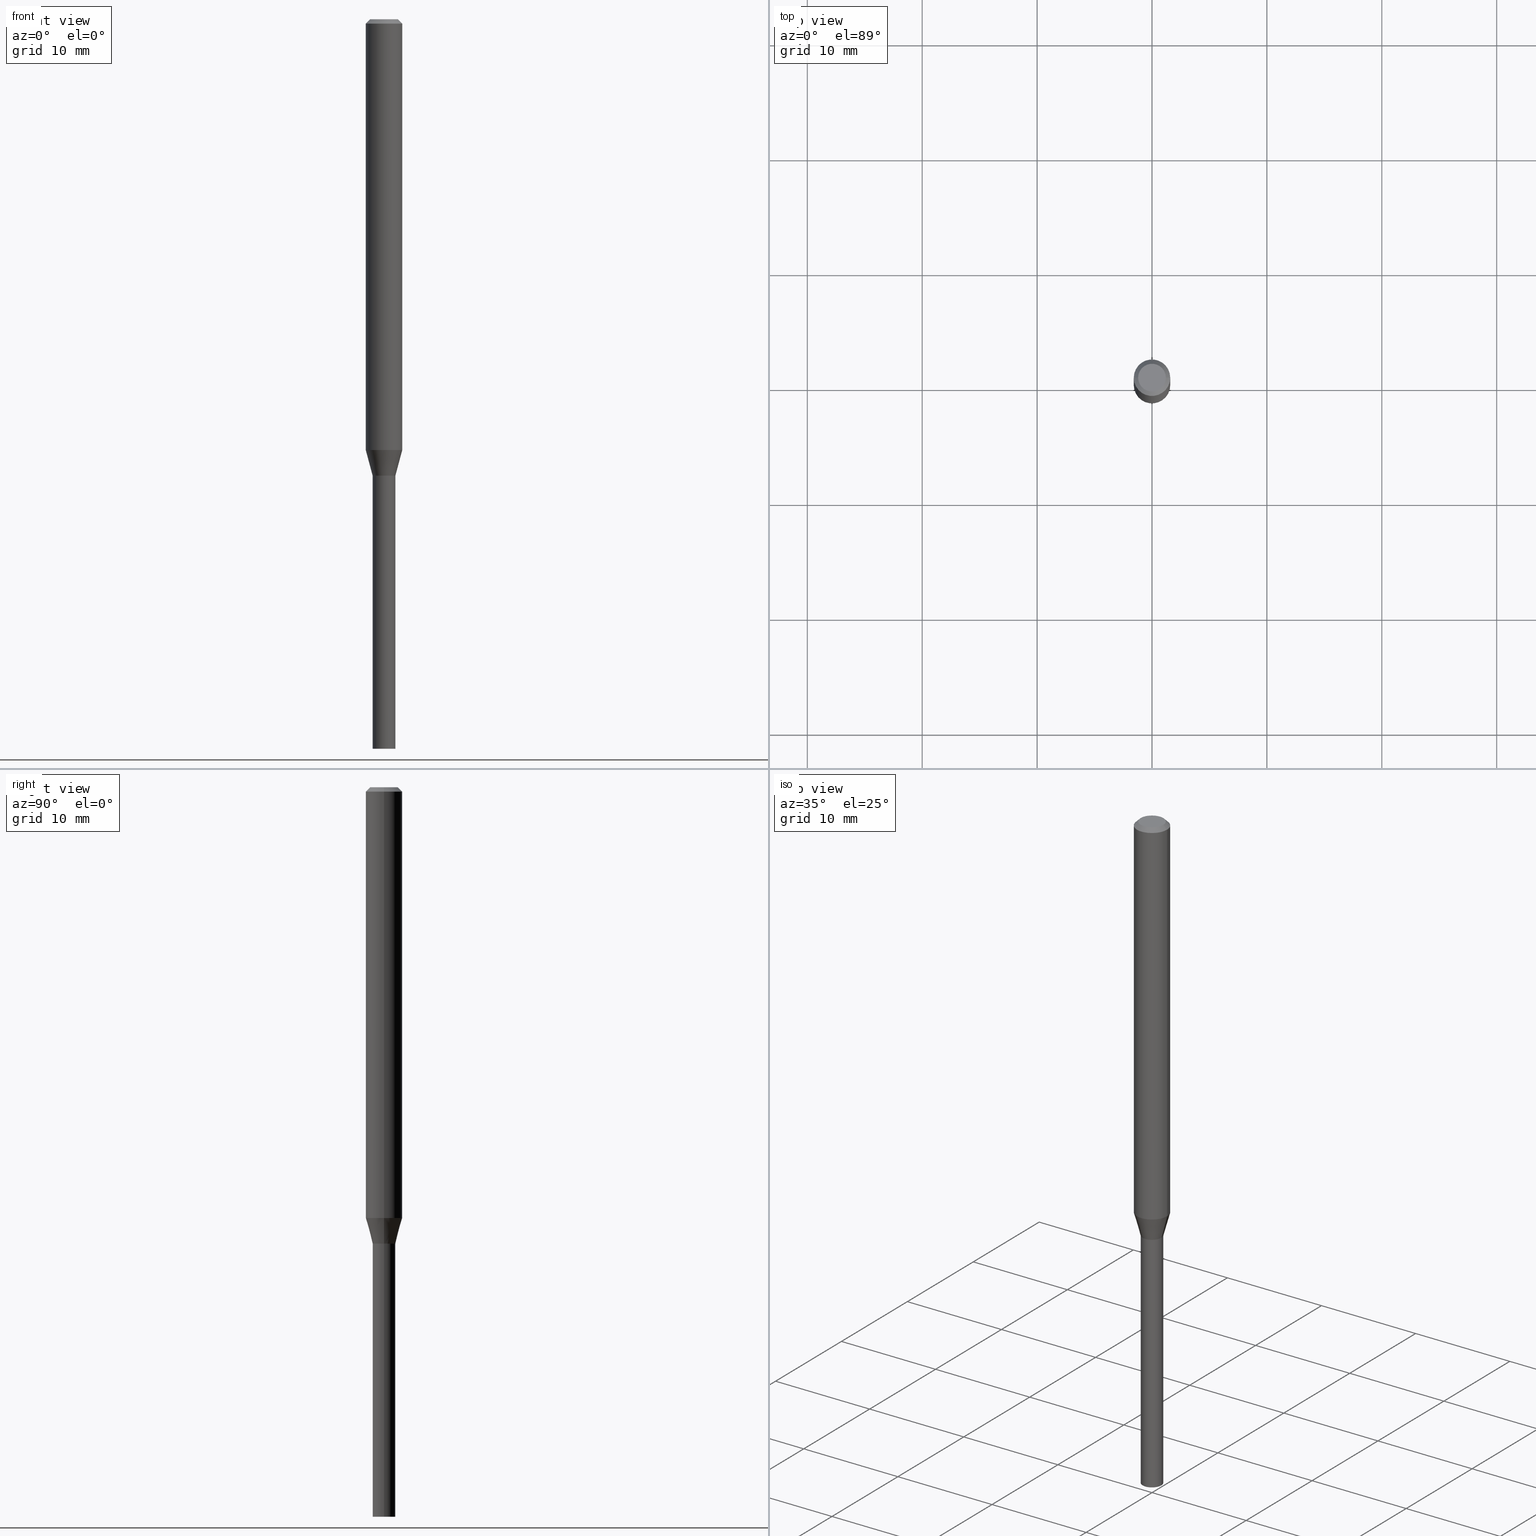
[diagram: canonical four-view strip — front | top / right | iso, engineering-drawing reading convention]
A machine part, canonical four-view strip (front | top / right | iso — engineering-drawing reading convention). The complete STEP part file that produces these views, byte-faithful:
ISO-10303-21;
HEADER;
FILE_DESCRIPTION (( 'STEP AP203' ),
    '1' );
FILE_NAME ('01300.STEP',
    '2024-03-20T01:13:30',
    ( '' ),
    ( '' ),
    'SwSTEP 2.0',
    'SolidWorks 2023',
    '' );
FILE_SCHEMA (( 'CONFIG_CONTROL_DESIGN' ));
ENDSEC;

DATA;
#1 = CARTESIAN_POINT ( 'NONE',  ( 0.000000000000000000, 0.000000000000000000, 0.000000000000000000 ) ) ;
#2 = DIRECTION ( 'NONE',  ( -2.445468806185136597E-29, 3.491481338843145583E-15, 1.000000000000000000 ) ) ;
#3 = EDGE_LOOP ( 'NONE', ( #464, #337, #123, #191 ) ) ;
#4 = CIRCLE ( 'NONE', #104, 0.03900000000000019423 ) ;
#5 = AXIS2_PLACEMENT_3D ( 'NONE', #444, #166, #49 ) ;
#6 = AXIS2_PLACEMENT_3D ( 'NONE', #459, #289, #102 ) ;
#7 = APPROVAL_STATUS ( 'not_yet_approved' ) ;
#8 = VERTEX_POINT ( 'NONE', #62 ) ;
#9 = ORIENTED_EDGE ( 'NONE', *, *, #461, .T. ) ;
#10 = PLANE ( 'NONE',  #415 ) ;
#11 = ORIENTED_EDGE ( 'NONE', *, *, #318, .F. ) ;
#12 = ADVANCED_FACE ( 'NONE', ( #210 ), #20, .T. ) ;
#13 = PERSON_AND_ORGANIZATION ( #177, #33 ) ;
#14 = CARTESIAN_POINT ( 'NONE',  ( 0.06250000000000000000, -4.364351673553916694E-16, 3.047610484872459871E-30 ) ) ;
#15 = VECTOR ( 'NONE', #206, 39.37007874015748143 ) ;
#16 = LINE ( 'NONE', #14, #52 ) ;
#17 = CARTESIAN_POINT ( 'NONE',  ( -0.03849999999999999256, -5.187117860683040891E-15, -1.563999999999999835 ) ) ;
#18 = FACE_OUTER_BOUND ( 'NONE', #40, .T. ) ;
#19 = EDGE_CURVE ( 'NONE', #84, #235, #60, .T. ) ;
#20 = CONICAL_SURFACE ( 'NONE', #355, 0.06250000000000000000, 0.7853981633974427279 ) ;
#21 = DIRECTION ( 'NONE',  ( 1.000000000000000000, -6.982962677686265922E-15, 4.876176775795935793E-29 ) ) ;
#22 = EDGE_LOOP ( 'NONE', ( #127, #298, #155, #404 ) ) ;
#23 = CARTESIAN_POINT ( 'NONE',  ( -0.03899999999999964606, -5.183565147004243937E-15, -1.564000000000000057 ) ) ;
#24 = CARTESIAN_POINT ( 'NONE',  ( 0.04749999999999999362, -4.035134999187575172E-16, 1.714600683655970215E-16 ) ) ;
#25 = ORIENTED_EDGE ( 'NONE', *, *, #461, .F. ) ;
#26 = LINE ( 'NONE', #23, #321 ) ;
#27 = VECTOR ( 'NONE', #189, 39.37007874015748854 ) ;
#28 = FACE_OUTER_BOUND ( 'NONE', #183, .T. ) ;
#29 = CARTESIAN_POINT ( 'NONE',  ( 0.06250000000000000000, -4.811533449433679005E-16, -0.01499999999999999944 ) ) ;
#30 = ADVANCED_FACE ( 'NONE', ( #352 ), #402, .T. ) ;
#31 = DIRECTION ( 'NONE',  ( -2.445468806185136597E-29, 3.491481338843145583E-15, 1.000000000000000000 ) ) ;
#32 = APPLICATION_PROTOCOL_DEFINITION ( 'international standard', 'config_control_design', 1994, #109 ) ;
#33 = ORGANIZATION ( 'UNSPECIFIED', 'UNSPECIFIED', '' ) ;
#34 = PRODUCT ( '01300', '01300', '', ( #85 ) ) ;
#35 = APPROVAL_DATE_TIME ( #437, #131 ) ;
#36 = VERTEX_POINT ( 'NONE', #67 ) ;
#37 = APPROVAL ( #295, 'UNSPECIFIED' ) ;
#38 = LENGTH_MEASURE_WITH_UNIT ( LENGTH_MEASURE( 0.02539999999999999897 ), #410 );
#39 = VERTEX_POINT ( 'NONE', #76 ) ;
#40 = EDGE_LOOP ( 'NONE', ( #78, #229 ) ) ;
#41 = CARTESIAN_POINT ( 'NONE',  ( 3.824713212873553776E-29, -5.460676813950680100E-15, -1.564000000000000057 ) ) ;
#42 = VERTEX_POINT ( 'NONE', #223 ) ;
#43 = EDGE_LOOP ( 'NONE', ( #87, #232, #378, #154 ) ) ;
#44 = CIRCLE ( 'NONE', #286, 0.06250000000000000000 ) ;
#45 = ORIENTED_EDGE ( 'NONE', *, *, #164, .T. ) ;
#46 = DIRECTION ( 'NONE',  ( 0.2588190451025203509, 1.565188264969630053E-15, 0.9659258262890684232 ) ) ;
#47 = COORDINATED_UNIVERSAL_TIME_OFFSET ( 5, 0, .BEHIND. ) ;
#48 = ADVANCED_FACE ( 'NONE', ( #406 ), #213, .F. ) ;
#49 = DIRECTION ( 'NONE',  ( 1.000000000000000000, -6.982962677686272233E-15, 0.000000000000000000 ) ) ;
#50 = APPROVAL_DATE_TIME ( #168, #331 ) ;
#51 = DIRECTION ( 'NONE',  ( 1.000000000000000000, -6.982962677686273021E-15, 0.000000000000000000 ) ) ;
#52 = VECTOR ( 'NONE', #132, 39.37007874015748143 ) ;
#53 = COORDINATED_UNIVERSAL_TIME_OFFSET ( 5, 0, .BEHIND. ) ;
#54 = EDGE_LOOP ( 'NONE', ( #57, #434 ) ) ;
#55 = FACE_OUTER_BOUND ( 'NONE', #328, .T. ) ;
#56 = PERSON_AND_ORGANIZATION ( #177, #33 ) ;
#57 = ORIENTED_EDGE ( 'NONE', *, *, #265, .F. ) ;
#58 = ADVANCED_FACE ( 'NONE', ( #226 ), #237, .F. ) ;
#59 = CYLINDRICAL_SURFACE ( 'NONE', #119, 0.03899999999999999994 ) ;
#60 = LINE ( 'NONE', #310, #422 ) ;
#61 = DIRECTION ( 'NONE',  ( -2.445468806185136597E-29, 3.491481338843145583E-15, 1.000000000000000000 ) ) ;
#62 = CARTESIAN_POINT ( 'NONE',  ( 0.03899999999999999994, -5.733012358380444123E-15, -1.564000000000000057 ) ) ;
#63 = AXIS2_PLACEMENT_3D ( 'NONE', #1, #31, #364 ) ;
#64 = DIRECTION ( 'NONE',  ( 1.000000000000000000, -6.982962677686266711E-15, 0.000000000000000000 ) ) ;
#65 = AXIS2_PLACEMENT_3D ( 'NONE', #173, #430, #458 ) ;
#66 = ADVANCED_FACE ( 'NONE', ( #427 ), #372, .F. ) ;
#67 = CARTESIAN_POINT ( 'NONE',  ( 0.06250000000000000000, -5.590897916175398580E-15, -1.476296806022129982 ) ) ;
#68 = CARTESIAN_POINT ( 'NONE',  ( 3.610237787797868067E-29, -5.154462748820006121E-15, -1.476296806022129982 ) ) ;
#69 = CARTESIAN_POINT ( 'NONE',  ( 3.824713212873553776E-29, -5.460676813950680100E-15, -1.564000000000000057 ) ) ;
#70 = CARTESIAN_POINT ( 'NONE',  ( 3.824713212873553216E-29, -5.460676813950679311E-15, -1.563999999999999835 ) ) ;
#71 = APPROVAL_PERSON_ORGANIZATION ( #151, #37, #438 ) ;
#72 = APPROVAL_PERSON_ORGANIZATION ( #79, #131, #442 ) ;
#73 = EDGE_CURVE ( 'NONE', #335, #374, #170, .T. ) ;
#74 = PERSON_AND_ORGANIZATION ( #177, #33 ) ;
#75 = ORIENTED_EDGE ( 'NONE', *, *, #164, .F. ) ;
#76 = CARTESIAN_POINT ( 'NONE',  ( -0.03899999999999964606, -4.946969342987092932E-15, -1.564000000000000057 ) ) ;
#77 = CARTESIAN_POINT ( 'NONE',  ( 0.000000000000000000, 0.000000000000000000, 0.000000000000000000 ) ) ;
#78 = ORIENTED_EDGE ( 'NONE', *, *, #413, .T. ) ;
#79 = PERSON_AND_ORGANIZATION ( #177, #33 ) ;
#80 = VECTOR ( 'NONE', #204, 39.37007874015748143 ) ;
#81 = EDGE_CURVE ( 'NONE', #443, #8, #200, .T. ) ;
#82 = AXIS2_PLACEMENT_3D ( 'NONE', #41, #152, #370 ) ;
#83 = CARTESIAN_POINT ( 'NONE',  ( 3.824713212873553776E-29, -5.460676813950680100E-15, -1.564000000000000057 ) ) ;
#84 = VERTEX_POINT ( 'NONE', #96 ) ;
#85 = MECHANICAL_CONTEXT ( 'NONE', #88, 'mechanical' ) ;
#86 = ORIENTED_EDGE ( 'NONE', *, *, #271, .F. ) ;
#87 = ORIENTED_EDGE ( 'NONE', *, *, #265, .T. ) ;
#88 = APPLICATION_CONTEXT ( 'configuration controlled 3d designs of mechanical parts and assemblies' ) ;
#89 = EDGE_CURVE ( 'NONE', #84, #443, #279, .T. ) ;
#90 = PRODUCT_DEFINITION_FORMATION_WITH_SPECIFIED_SOURCE ( 'ANY', '', #34, .NOT_KNOWN. ) ;
#91 = CARTESIAN_POINT ( 'NONE',  ( 0.03899999999999964606, -5.733012358380442545E-15, -1.564000000000000057 ) ) ;
#92 = VERTEX_POINT ( 'NONE', #91 ) ;
#93 = CARTESIAN_POINT ( 'NONE',  ( 0.03899999999999992362, -2.723355444297638751E-16, 1.901708942560411078E-30 ) ) ;
#94 = UNCERTAINTY_MEASURE_WITH_UNIT (LENGTH_MEASURE( 1.000000000000000082E-05 ), #145, 'distance_accuracy_value', 'NONE');
#95 = CALENDAR_DATE ( 2024, 19, 3 ) ;
#96 = CARTESIAN_POINT ( 'NONE',  ( -0.03899999999999999994, -6.817578413582832808E-15, -2.500000000000000000 ) ) ;
#97 = ADVANCED_FACE ( 'NONE', ( #18 ), #10, .F. ) ;
#98 = AXIS2_PLACEMENT_3D ( 'NONE', #361, #214, #219 ) ;
#99 = DIRECTION ( 'NONE',  ( 1.000000000000000000, -6.982962677686271444E-15, 0.000000000000000000 ) ) ;
#100 = FACE_OUTER_BOUND ( 'NONE', #122, .T. ) ;
#101 = VERTEX_POINT ( 'NONE', #451 ) ;
#102 = DIRECTION ( 'NONE',  ( -1.000000000000000000, 6.982962677686266711E-15, 0.000000000000000000 ) ) ;
#103 = ADVANCED_FACE ( 'NONE', ( #55 ), #211, .T. ) ;
#104 = AXIS2_PLACEMENT_3D ( 'NONE', #272, #282, #51 ) ;
#105 = DIRECTION ( 'NONE',  ( -2.445468806185136597E-29, 3.491481338843145583E-15, 1.000000000000000000 ) ) ;
#106 = CARTESIAN_POINT ( 'NONE',  ( 3.824713212873553776E-29, -5.460676813950680100E-15, -1.564000000000000057 ) ) ;
#107 = CARTESIAN_POINT ( 'NONE',  ( 3.668203209277705088E-31, -5.237222008264718399E-17, -0.01499999999999999944 ) ) ;
#108 = CARTESIAN_POINT ( 'NONE',  ( -0.03900000000000019423, -5.181819406334818489E-15, -1.563500000000000112 ) ) ;
#109 = APPLICATION_CONTEXT ( 'configuration controlled 3d designs of mechanical parts and assemblies' ) ;
#110 = EDGE_CURVE ( 'NONE', #269, #374, #4, .T. ) ;
#111 = DIRECTION ( 'NONE',  ( 1.000000000000000000, -6.982962677686272233E-15, 0.000000000000000000 ) ) ;
#112 = AXIS2_PLACEMENT_3D ( 'NONE', #396, #217, #465 ) ;
#113 = AXIS2_PLACEMENT_3D ( 'NONE', #69, #431, #21 ) ;
#114 = DIRECTION ( 'NONE',  ( 0.7071067811865435759, -7.319954787623241846E-15, -0.7071067811865514585 ) ) ;
#115 = LINE ( 'NONE', #334, #27 ) ;
#116 = EDGE_CURVE ( 'NONE', #39, #92, #134, .T. ) ;
#117 = ORIENTED_EDGE ( 'NONE', *, *, #456, .F. ) ;
#118 = COORDINATED_UNIVERSAL_TIME_OFFSET ( 5, 0, .BEHIND. ) ;
#119 = AXIS2_PLACEMENT_3D ( 'NONE', #344, #380, #305 ) ;
#120 = ORIENTED_EDGE ( 'NONE', *, *, #456, .T. ) ;
#121 = DIRECTION ( 'NONE',  ( 0.000000000000000000, 0.000000000000000000, 1.000000000000000000 ) ) ;
#122 = EDGE_LOOP ( 'NONE', ( #249, #194, #407, #401 ) ) ;
#123 = ORIENTED_EDGE ( 'NONE', *, *, #81, .T. ) ;
#124 = EDGE_CURVE ( 'NONE', #92, #269, #159, .T. ) ;
#125 = ORIENTED_EDGE ( 'NONE', *, *, #192, .F. ) ;
#126 = CARTESIAN_POINT ( 'NONE',  ( 0.03899999999999999994, -2.723355444297643682E-16, 1.901708942560414931E-30 ) ) ;
#127 = ORIENTED_EDGE ( 'NONE', *, *, #73, .F. ) ;
#128 = CIRCLE ( 'NONE', #185, 0.03849999999999999256 ) ;
#129 = CYLINDRICAL_SURFACE ( 'NONE', #369, 0.06250000000000000000 ) ;
#130 = FACE_OUTER_BOUND ( 'NONE', #283, .T. ) ;
#131 = APPROVAL ( #7, 'UNSPECIFIED' ) ;
#132 = DIRECTION ( 'NONE',  ( -2.445468806185136877E-29, 3.491481338843145188E-15, 1.000000000000000000 ) ) ;
#133 = MANIFOLD_SOLID_BREP ( 'Body-Move/Copy2[1]', #242 ) ;
#134 = CIRCLE ( 'NONE', #5, 0.03899999999999964606 ) ;
#135 = CARTESIAN_POINT ( 'NONE',  ( 2.723355444298025786E-16, 0.03899999999999453210, -1.564000000000000057 ) ) ;
#136 = DIRECTION ( 'NONE',  ( -2.445468806185136597E-29, 3.491481338843145583E-15, 1.000000000000000000 ) ) ;
#137 = CARTESIAN_POINT ( 'NONE',  ( -0.06250000000000000000, -2.159328274601264181E-15, -0.01499999999999999944 ) ) ;
#138 = MANIFOLD_SOLID_BREP ( 'Body-Move/Copy2[2]', #201 ) ;
#139 = CARTESIAN_POINT ( 'NONE',  ( 0.000000000000000000, 0.000000000000000000, 0.000000000000000000 ) ) ;
#140 = DIRECTION ( 'NONE',  ( 1.000000000000000000, -6.982962677686265922E-15, 4.876176775795935793E-29 ) ) ;
#141 = AXIS2_PLACEMENT_3D ( 'NONE', #175, #317, #142 ) ;
#142 = DIRECTION ( 'NONE',  ( 1.000000000000000000, -6.982962677686283277E-15, 0.000000000000000000 ) ) ;
#143 = DIRECTION ( 'NONE',  ( -2.445468806185136597E-29, 3.491481338843145583E-15, 1.000000000000000000 ) ) ;
#144 = ADVANCED_FACE ( 'NONE', ( #100 ), #450, .F. ) ;
#145 =( CONVERSION_BASED_UNIT ( 'INCH', #38 ) LENGTH_UNIT ( ) NAMED_UNIT ( #245 ) );
#146 = AXIS2_PLACEMENT_3D ( 'NONE', #240, #360, #323 ) ;
#147 = AXIS2_PLACEMENT_3D ( 'NONE', #77, #121, #412 ) ;
#148 = CC_DESIGN_APPROVAL ( #331, ( #417 ) ) ;
#149 = EDGE_CURVE ( 'NONE', #92, #36, #241, .T. ) ;
#150 = EDGE_CURVE ( 'NONE', #39, #374, #339, .T. ) ;
#151 = PERSON_AND_ORGANIZATION ( #177, #33 ) ;
#152 = DIRECTION ( 'NONE',  ( -2.445468806185136597E-29, 3.491481338843145583E-15, 1.000000000000000000 ) ) ;
#153 = AXIS2_PLACEMENT_3D ( 'NONE', #308, #136, #99 ) ;
#154 = ORIENTED_EDGE ( 'NONE', *, *, #81, .F. ) ;
#155 = ORIENTED_EDGE ( 'NONE', *, *, #453, .T. ) ;
#156 = LINE ( 'NONE', #268, #281 ) ;
#157 = EDGE_CURVE ( 'NONE', #374, #269, #408, .T. ) ;
#158 = VERTEX_POINT ( 'NONE', #349 ) ;
#159 = LINE ( 'NONE', #93, #375 ) ;
#160 = ORIENTED_EDGE ( 'NONE', *, *, #246, .T. ) ;
#161 = DIRECTION ( 'NONE',  ( 1.000000000000000000, -6.982962677686266711E-15, 4.876176775795935232E-29 ) ) ;
#162 = CONICAL_SURFACE ( 'NONE', #193, 0.03849999999999999256, 0.7853981633980202659 ) ;
#163 = PERSON_AND_ORGANIZATION ( #177, #33 ) ;
#164 = EDGE_CURVE ( 'NONE', #36, #101, #16, .T. ) ;
#165 = DIRECTION ( 'NONE',  ( -2.445468806185136597E-29, 3.491481338843145583E-15, 1.000000000000000000 ) ) ;
#166 = DIRECTION ( 'NONE',  ( -2.445468806185136597E-29, 3.491481338843145583E-15, 1.000000000000000000 ) ) ;
#167 = DESIGN_CONTEXT ( 'detailed design', #109, 'design' ) ;
#168 = DATE_AND_TIME ( #307, #435 ) ;
#169 = ORIENTED_EDGE ( 'NONE', *, *, #116, .T. ) ;
#170 = LINE ( 'NONE', #17, #292 ) ;
#171 = AXIS2_PLACEMENT_3D ( 'NONE', #244, #448, #390 ) ;
#172 = CIRCLE ( 'NONE', #180, 0.03899999999999964606 ) ;
#173 = CARTESIAN_POINT ( 'NONE',  ( 3.824713212873553776E-29, -5.460676813950680100E-15, -1.564000000000000057 ) ) ;
#174 = PRODUCT_RELATED_PRODUCT_CATEGORY ( 'detail', '', ( #34 ) ) ;
#175 = CARTESIAN_POINT ( 'NONE',  ( 6.113672015462842613E-29, -8.728703347107864943E-15, -2.500000000000000000 ) ) ;
#176 = CYLINDRICAL_SURFACE ( 'NONE', #447, 0.03899999999999999994 ) ;
#177 = PERSON ( 'UNSPECIFIED', 'UNSPECIFIED', 'UNSPECIFIED', ('UNSPECIFIED'), ('UNSPECIFIED'), ('UNSPECIFIED') ) ;
#178 = EDGE_CURVE ( 'NONE', #270, #313, #399, .T. ) ;
#179 = DIRECTION ( 'NONE',  ( -2.445468806185136597E-29, 3.491481338843145583E-15, 1.000000000000000000 ) ) ;
#180 = AXIS2_PLACEMENT_3D ( 'NONE', #363, #426, #324 ) ;
#181 = DIRECTION ( 'NONE',  ( -2.445468806185136597E-29, 3.491481338843145583E-15, 1.000000000000000000 ) ) ;
#182 = CC_DESIGN_PERSON_AND_ORGANIZATION_ASSIGNMENT ( #74, #186, ( #425 ) ) ;
#183 = EDGE_LOOP ( 'NONE', ( #371, #224 ) ) ;
#184 = DATE_AND_TIME ( #221, #293 ) ;
#185 = AXIS2_PLACEMENT_3D ( 'NONE', #428, #397, #288 ) ;
#186 = PERSON_AND_ORGANIZATION_ROLE ( 'creator' ) ;
#187 = ORIENTED_EDGE ( 'NONE', *, *, #192, .T. ) ;
#188 = ORIENTED_EDGE ( 'NONE', *, *, #150, .F. ) ;
#189 = DIRECTION ( 'NONE',  ( 0.7071067811869518049, -2.468850131086492060E-15, 0.7071067811861430075 ) ) ;
#190 = ORIENTED_EDGE ( 'NONE', *, *, #326, .F. ) ;
#191 = ORIENTED_EDGE ( 'NONE', *, *, #460, .F. ) ;
#192 = EDGE_CURVE ( 'NONE', #42, #222, #421, .T. ) ;
#193 = AXIS2_PLACEMENT_3D ( 'NONE', #395, #181, #314 ) ;
#194 = ORIENTED_EDGE ( 'NONE', *, *, #150, .T. ) ;
#195 = PERSON_AND_ORGANIZATION ( #177, #33 ) ;
#196 = DIRECTION ( 'NONE',  ( 1.000000000000000000, -6.982962677686283277E-15, 0.000000000000000000 ) ) ;
#197 = CARTESIAN_POINT ( 'NONE',  ( -0.06250000000000000000, 4.440892098500626162E-16, -3.074334431409316114E-30 ) ) ;
#198 = EDGE_LOOP ( 'NONE', ( #188, #11, #345, #225 ) ) ;
#199 = APPROVAL_DATE_TIME ( #389, #37 ) ;
#200 = LINE ( 'NONE', #126, #15 ) ;
#201 = CLOSED_SHELL ( 'NONE', ( #144, #103, #12, #216, #403, #394, #30, #367, #97, #333, #302, #58 ) ) ;
#202 = CC_DESIGN_APPROVAL ( #131, ( #425 ) ) ;
#203 = CC_DESIGN_SECURITY_CLASSIFICATION ( #417, ( #90 ) ) ;
#204 = DIRECTION ( 'NONE',  ( -2.445468806185136877E-29, 3.491481338843145188E-15, 1.000000000000000000 ) ) ;
#205 = SHAPE_DEFINITION_REPRESENTATION ( #294, #354 ) ;
#206 = DIRECTION ( 'NONE',  ( -2.445468806185136877E-29, 3.491481338843145188E-15, 1.000000000000000000 ) ) ;
#207 = CARTESIAN_POINT ( 'NONE',  ( -0.04749999999999999362, 3.578768372314213957E-16, 1.714600683655920665E-16 ) ) ;
#208 = ADVANCED_FACE ( 'NONE', ( #418 ), #59, .T. ) ;
#209 = DIRECTION ( 'NONE',  ( -1.000000000000000000, 6.982962677686266711E-15, 0.000000000000000000 ) ) ;
#210 = FACE_OUTER_BOUND ( 'NONE', #385, .T. ) ;
#211 = CONICAL_SURFACE ( 'NONE', #153, 0.03849999999999999256, 0.7853981633980202659 ) ;
#212 = CIRCLE ( 'NONE', #227, 0.06250000000000000000 ) ;
#213 = PLANE ( 'NONE',  #112 ) ;
#214 = DIRECTION ( 'NONE',  ( -2.445468806185136597E-29, 3.491481338843145583E-15, 1.000000000000000000 ) ) ;
#215 = CARTESIAN_POINT ( 'NONE',  ( -0.03849999999999999256, -5.184468633508929690E-15, -1.563999999999999835 ) ) ;
#216 = ADVANCED_FACE ( 'NONE', ( #130 ), #129, .T. ) ;
#217 = DIRECTION ( 'NONE',  ( -2.438088387897960049E-29, 3.491481338843145188E-15, 1.000000000000000000 ) ) ;
#218 = FACE_OUTER_BOUND ( 'NONE', #266, .T. ) ;
#219 = DIRECTION ( 'NONE',  ( 1.000000000000000000, -6.982962677686262766E-15, 0.000000000000000000 ) ) ;
#220 = CONICAL_SURFACE ( 'NONE', #433, 0.03899999999999964606, 0.2617993877991490193 ) ;
#221 = CALENDAR_DATE ( 2024, 19, 3 ) ;
#222 = VERTEX_POINT ( 'NONE', #137 ) ;
#223 = CARTESIAN_POINT ( 'NONE',  ( -0.06250000000000000000, -4.710373538969943505E-15, -1.476296806022129982 ) ) ;
#224 = ORIENTED_EDGE ( 'NONE', *, *, #296, .F. ) ;
#225 = ORIENTED_EDGE ( 'NONE', *, *, #110, .T. ) ;
#226 = FACE_OUTER_BOUND ( 'NONE', #198, .T. ) ;
#227 = AXIS2_PLACEMENT_3D ( 'NONE', #432, #105, #64 ) ;
#228 = CALENDAR_DATE ( 2024, 19, 3 ) ;
#229 = ORIENTED_EDGE ( 'NONE', *, *, #178, .T. ) ;
#230 = EDGE_CURVE ( 'NONE', #36, #42, #44, .T. ) ;
#231 = PERSON_AND_ORGANIZATION_ROLE ( 'design_owner' ) ;
#232 = ORIENTED_EDGE ( 'NONE', *, *, #19, .T. ) ;
#233 = ORIENTED_EDGE ( 'NONE', *, *, #149, .F. ) ;
#234 = VECTOR ( 'NONE', #114, 39.37007874015748143 ) ;
#235 = VERTEX_POINT ( 'NONE', #319 ) ;
#236 = DIRECTION ( 'NONE',  ( -2.445468806185136597E-29, 3.491481338843145583E-15, 1.000000000000000000 ) ) ;
#237 = CYLINDRICAL_SURFACE ( 'NONE', #146, 0.03899999999999992362 ) ;
#238 = EDGE_CURVE ( 'NONE', #39, #42, #26, .T. ) ;
#239 = DIRECTION ( 'NONE',  ( -2.445468806185136877E-29, 3.491481338843145188E-15, 1.000000000000000000 ) ) ;
#240 = CARTESIAN_POINT ( 'NONE',  ( 0.000000000000000000, 0.000000000000000000, 0.000000000000000000 ) ) ;
#241 = LINE ( 'NONE', #247, #368 ) ;
#242 = CLOSED_SHELL ( 'NONE', ( #208, #48, #291, #66 ) ) ;
#243 = CIRCLE ( 'NONE', #400, 0.04749999999999999362 ) ;
#244 = CARTESIAN_POINT ( 'NONE',  ( 3.823490478470460975E-29, -5.458931073281258596E-15, -1.563500000000000112 ) ) ;
#245 = DIMENSIONAL_EXPONENTS ( 1.000000000000000000, 0.000000000000000000, 0.000000000000000000, 0.000000000000000000, 0.000000000000000000, 0.000000000000000000, 0.000000000000000000 ) ;
#246 = EDGE_CURVE ( 'NONE', #158, #335, #312, .T. ) ;
#247 = CARTESIAN_POINT ( 'NONE',  ( 0.03899999999999964606, -5.733012358380442545E-15, -1.564000000000000057 ) ) ;
#248 = DIRECTION ( 'NONE',  ( -2.445468806185136877E-29, 3.491481338843145188E-15, 1.000000000000000000 ) ) ;
#249 = ORIENTED_EDGE ( 'NONE', *, *, #116, .F. ) ;
#250 = DIRECTION ( 'NONE',  ( -2.445468806185136597E-29, 3.491481338843145583E-15, 1.000000000000000000 ) ) ;
#251 = AXIS2_PLACEMENT_3D ( 'NONE', #278, #301, #196 ) ;
#252 = AXIS2_PLACEMENT_3D ( 'NONE', #83, #2, #260 ) ;
#253 = PLANE ( 'NONE',  #113 ) ;
#254 = DIRECTION ( 'NONE',  ( 1.000000000000000000, -6.982962677686266711E-15, 0.000000000000000000 ) ) ;
#255 = DIRECTION ( 'NONE',  ( -2.445468806185136597E-29, 3.491481338843145583E-15, 1.000000000000000000 ) ) ;
#256 = CIRCLE ( 'NONE', #141, 0.03899999999999999994 ) ;
#257 = CALENDAR_DATE ( 2024, 19, 3 ) ;
#258 = ORIENTED_EDGE ( 'NONE', *, *, #384, .T. ) ;
#259 = CC_DESIGN_PERSON_AND_ORGANIZATION_ASSIGNMENT ( #56, #416, ( #417 ) ) ;
#260 = DIRECTION ( 'NONE',  ( 1.000000000000000000, -6.982962677686258033E-15, 0.000000000000000000 ) ) ;
#261 = ORIENTED_EDGE ( 'NONE', *, *, #230, .T. ) ;
#262 = DIRECTION ( 'NONE',  ( -0.7071067811865435759, 2.468850131082215251E-15, -0.7071067811865514585 ) ) ;
#263 = LINE ( 'NONE', #29, #234 ) ;
#264 = VECTOR ( 'NONE', #276, 39.37007874015748143 ) ;
#265 = EDGE_CURVE ( 'NONE', #443, #84, #256, .T. ) ;
#266 = EDGE_LOOP ( 'NONE', ( #424, #379, #316, #233 ) ) ;
#267 = ORIENTED_EDGE ( 'NONE', *, *, #73, .T. ) ;
#268 = CARTESIAN_POINT ( 'NONE',  ( -0.06250000000000000000, 3.840629472727444916E-16, -0.01499999999999999944 ) ) ;
#269 = VERTEX_POINT ( 'NONE', #393 ) ;
#270 = VERTEX_POINT ( 'NONE', #24 ) ;
#271 = EDGE_CURVE ( 'NONE', #42, #36, #329, .T. ) ;
#272 = CARTESIAN_POINT ( 'NONE',  ( 3.823490478470460975E-29, -5.458931073281258596E-15, -1.563500000000000112 ) ) ;
#273 = AXIS2_PLACEMENT_3D ( 'NONE', #423, #236, #161 ) ;
#274 = PERSON_AND_ORGANIZATION_ROLE ( 'creator' ) ;
#275 = CARTESIAN_POINT ( 'NONE',  ( 0.000000000000000000, 0.000000000000000000, 0.000000000000000000 ) ) ;
#276 = DIRECTION ( 'NONE',  ( -2.445468806185136877E-29, 3.491481338843145188E-15, 1.000000000000000000 ) ) ;
#277 = EDGE_LOOP ( 'NONE', ( #297, #169, #322, #86 ) ) ;
#278 = CARTESIAN_POINT ( 'NONE',  ( 6.113672015462842613E-29, -8.728703347107864943E-15, -2.500000000000000000 ) ) ;
#279 = CIRCLE ( 'NONE', #251, 0.03899999999999999994 ) ;
#280 = LOCAL_TIME ( 21, 13, 30.00000000000000000, #299 ) ;
#281 = VECTOR ( 'NONE', #262, 39.37007874015748143 ) ;
#282 = DIRECTION ( 'NONE',  ( -2.445468806185136597E-29, 3.491481338843145583E-15, 1.000000000000000000 ) ) ;
#283 = EDGE_LOOP ( 'NONE', ( #261, #187, #350, #75 ) ) ;
#284 = FACE_OUTER_BOUND ( 'NONE', #22, .T. ) ;
#285 = DIRECTION ( 'NONE',  ( -2.445468806185136597E-29, 3.491481338843145583E-15, 1.000000000000000000 ) ) ;
#286 = AXIS2_PLACEMENT_3D ( 'NONE', #68, #285, #358 ) ;
#287 = CARTESIAN_POINT ( 'NONE',  ( 3.668203209277705088E-31, -5.237222008264718399E-17, -0.01499999999999999944 ) ) ;
#288 = DIRECTION ( 'NONE',  ( 1.000000000000000000, -6.982962677686271444E-15, 0.000000000000000000 ) ) ;
#289 = DIRECTION ( 'NONE',  ( 2.445468806185136597E-29, -3.491481338843145583E-15, -1.000000000000000000 ) ) ;
#290 = EDGE_LOOP ( 'NONE', ( #125, #304, #45, #190 ) ) ;
#291 = ADVANCED_FACE ( 'NONE', ( #455 ), #176, .T. ) ;
#292 = VECTOR ( 'NONE', #386, 39.37007874015748854 ) ;
#293 = LOCAL_TIME ( 21, 13, 30.00000000000000000, #332 ) ;
#294 = PRODUCT_DEFINITION_SHAPE ( 'NONE', 'NONE',  #425 ) ;
#295 = APPROVAL_STATUS ( 'not_yet_approved' ) ;
#296 = EDGE_CURVE ( 'NONE', #335, #158, #128, .T. ) ;
#297 = ORIENTED_EDGE ( 'NONE', *, *, #238, .F. ) ;
#298 = ORIENTED_EDGE ( 'NONE', *, *, #296, .T. ) ;
#299 = COORDINATED_UNIVERSAL_TIME_OFFSET ( 5, 0, .BEHIND. ) ;
#300 = APPROVAL_STATUS ( 'not_yet_approved' ) ;
#301 = DIRECTION ( 'NONE',  ( -2.445468806185136597E-29, 3.491481338843145583E-15, 1.000000000000000000 ) ) ;
#302 = ADVANCED_FACE ( 'NONE', ( #284 ), #162, .T. ) ;
#303 = PERSON_AND_ORGANIZATION_ROLE ( 'design_supplier' ) ;
#304 = ORIENTED_EDGE ( 'NONE', *, *, #271, .T. ) ;
#305 = DIRECTION ( 'NONE',  ( 1.000000000000000000, -6.982962677686265922E-15, 4.876176775795935793E-29 ) ) ;
#306 = LOCAL_TIME ( 21, 13, 30.00000000000000000, #47 ) ;
#307 = CALENDAR_DATE ( 2024, 19, 3 ) ;
#308 = CARTESIAN_POINT ( 'NONE',  ( 3.824713212873553216E-29, -5.460676813950679311E-15, -1.563999999999999835 ) ) ;
#309 = CARTESIAN_POINT ( 'NONE',  ( -0.03899999999999992362, 2.771116669464385298E-16, -1.918384685199409225E-30 ) ) ;
#310 = CARTESIAN_POINT ( 'NONE',  ( -0.03899999999999999994, 2.771116669464390721E-16, -1.918384685199413078E-30 ) ) ;
#311 = DIRECTION ( 'NONE',  ( -1.000000000000000000, 6.982962677686265922E-15, -4.876176775795935793E-29 ) ) ;
#312 = CIRCLE ( 'NONE', #388, 0.03849999999999999256 ) ;
#313 = VERTEX_POINT ( 'NONE', #207 ) ;
#314 = DIRECTION ( 'NONE',  ( 1.000000000000000000, -6.982962677686271444E-15, 0.000000000000000000 ) ) ;
#315 = CC_DESIGN_PERSON_AND_ORGANIZATION_ASSIGNMENT ( #13, #274, ( #90 ) ) ;
#316 = ORIENTED_EDGE ( 'NONE', *, *, #230, .F. ) ;
#317 = DIRECTION ( 'NONE',  ( -2.445468806185136597E-29, 3.491481338843145583E-15, 1.000000000000000000 ) ) ;
#318 = EDGE_CURVE ( 'NONE', #92, #39, #172, .T. ) ;
#319 = CARTESIAN_POINT ( 'NONE',  ( -0.03899999999999999994, -6.817578413582832808E-15, -1.564000000000000057 ) ) ;
#320 = AXIS2_PLACEMENT_3D ( 'NONE', #383, #165, #449 ) ;
#321 = VECTOR ( 'NONE', #457, 39.37007874015748143 ) ;
#322 = ORIENTED_EDGE ( 'NONE', *, *, #149, .T. ) ;
#323 = DIRECTION ( 'NONE',  ( 1.000000000000000000, -6.982962677686266711E-15, 4.876176775795935232E-29 ) ) ;
#324 = DIRECTION ( 'NONE',  ( 1.000000000000000000, -6.982962677686272233E-15, 0.000000000000000000 ) ) ;
#325 = FACE_OUTER_BOUND ( 'NONE', #445, .T. ) ;
#326 = EDGE_CURVE ( 'NONE', #222, #101, #212, .T. ) ;
#327 = DATE_TIME_ROLE ( 'creation_date' ) ;
#328 = EDGE_LOOP ( 'NONE', ( #160, #267, #365, #441 ) ) ;
#329 = CIRCLE ( 'NONE', #98, 0.06250000000000000000 ) ;
#330 = CARTESIAN_POINT ( 'NONE',  ( 0.03899999999999999994, -9.001038891537628966E-15, -2.500000000000000000 ) ) ;
#331 = APPROVAL ( #300, 'UNSPECIFIED' ) ;
#332 = COORDINATED_UNIVERSAL_TIME_OFFSET ( 5, 0, .BEHIND. ) ;
#333 = ADVANCED_FACE ( 'NONE', ( #28 ), #253, .F. ) ;
#334 = CARTESIAN_POINT ( 'NONE',  ( 0.03849999999999999256, -5.729520877041600327E-15, -1.563999999999999835 ) ) ;
#335 = VERTEX_POINT ( 'NONE', #215 ) ;
#336 = LOCAL_TIME ( 21, 13, 30.00000000000000000, #118 ) ;
#337 = ORIENTED_EDGE ( 'NONE', *, *, #89, .T. ) ;
#338 = DATE_AND_TIME ( #95, #306 ) ;
#339 = LINE ( 'NONE', #309, #80 ) ;
#340 = CC_DESIGN_DATE_AND_TIME_ASSIGNMENT ( #184, #327, ( #425 ) ) ;
#341 = ORIENTED_EDGE ( 'NONE', *, *, #460, .T. ) ;
#342 = APPROVAL_ROLE ( '' ) ;
#343 = ORIENTED_EDGE ( 'NONE', *, *, #326, .T. ) ;
#344 = CARTESIAN_POINT ( 'NONE',  ( 0.000000000000000000, 0.000000000000000000, 0.000000000000000000 ) ) ;
#345 = ORIENTED_EDGE ( 'NONE', *, *, #124, .T. ) ;
#346 = CARTESIAN_POINT ( 'NONE',  ( 3.316907271900976096E-16, 0.04749999999999999362, -8.011532941225217989E-17 ) ) ;
#347 = CIRCLE ( 'NONE', #252, 0.03899999999999999994 ) ;
#348 = ORIENTED_EDGE ( 'NONE', *, *, #436, .T. ) ;
#349 = CARTESIAN_POINT ( 'NONE',  ( 0.03849999999999999256, -5.729520877041600327E-15, -1.563999999999999835 ) ) ;
#350 = ORIENTED_EDGE ( 'NONE', *, *, #384, .F. ) ;
#351 = DIRECTION ( 'NONE',  ( -1.000000000000000000, 6.982962677686265922E-15, -4.876176775795935793E-29 ) ) ;
#352 = FACE_OUTER_BOUND ( 'NONE', #290, .T. ) ;
#353 = DIRECTION ( 'NONE',  ( 1.000000000000000000, -6.982962677686267499E-15, 4.852736867747366768E-29 ) ) ;
#354 = ADVANCED_BREP_SHAPE_REPRESENTATION ( '01300', ( #133, #138, #147 ), #362 ) ;
#355 = AXIS2_PLACEMENT_3D ( 'NONE', #107, #391, #209 ) ;
#356 = CC_DESIGN_DATE_AND_TIME_ASSIGNMENT ( #338, #381, ( #417 ) ) ;
#357 = CC_DESIGN_APPROVAL ( #37, ( #90 ) ) ;
#358 = DIRECTION ( 'NONE',  ( 1.000000000000000000, -6.982962677686262766E-15, 0.000000000000000000 ) ) ;
#359 = FACE_OUTER_BOUND ( 'NONE', #277, .T. ) ;
#360 = DIRECTION ( 'NONE',  ( -2.445468806185136597E-29, 3.491481338843145583E-15, 1.000000000000000000 ) ) ;
#361 = CARTESIAN_POINT ( 'NONE',  ( 3.610237787797868067E-29, -5.154462748820006121E-15, -1.476296806022129982 ) ) ;
#362 =( GEOMETRIC_REPRESENTATION_CONTEXT ( 3 ) GLOBAL_UNCERTAINTY_ASSIGNED_CONTEXT ( ( #94 ) ) GLOBAL_UNIT_ASSIGNED_CONTEXT ( ( #145, #405, #463 ) ) REPRESENTATION_CONTEXT ( 'NONE', 'WORKASPACE' ) );
#363 = CARTESIAN_POINT ( 'NONE',  ( 3.824713212873553776E-29, -5.460676813950680100E-15, -1.564000000000000057 ) ) ;
#364 = DIRECTION ( 'NONE',  ( 1.000000000000000000, -6.982962677686266711E-15, 4.876176775795935793E-29 ) ) ;
#365 = ORIENTED_EDGE ( 'NONE', *, *, #110, .F. ) ;
#366 = PERSON_AND_ORGANIZATION ( #177, #33 ) ;
#367 = ADVANCED_FACE ( 'NONE', ( #325 ), #429, .T. ) ;
#368 = VECTOR ( 'NONE', #46, 39.37007874015748143 ) ;
#369 = AXIS2_PLACEMENT_3D ( 'NONE', #275, #420, #454 ) ;
#370 = DIRECTION ( 'NONE',  ( 1.000000000000000000, -6.982962677686258033E-15, 0.000000000000000000 ) ) ;
#371 = ORIENTED_EDGE ( 'NONE', *, *, #246, .F. ) ;
#372 = PLANE ( 'NONE',  #387 ) ;
#373 = APPLICATION_PROTOCOL_DEFINITION ( 'international standard', 'config_control_design', 1994, #88 ) ;
#374 = VERTEX_POINT ( 'NONE', #108 ) ;
#375 = VECTOR ( 'NONE', #239, 39.37007874015748143 ) ;
#376 = AXIS2_PLACEMENT_3D ( 'NONE', #287, #143, #254 ) ;
#377 = CC_DESIGN_PERSON_AND_ORGANIZATION_ASSIGNMENT ( #366, #231, ( #34 ) ) ;
#378 = ORIENTED_EDGE ( 'NONE', *, *, #436, .F. ) ;
#379 = ORIENTED_EDGE ( 'NONE', *, *, #238, .T. ) ;
#380 = DIRECTION ( 'NONE',  ( -2.445468806185136597E-29, 3.491481338843145583E-15, 1.000000000000000000 ) ) ;
#381 = DATE_TIME_ROLE ( 'classification_date' ) ;
#382 = EDGE_LOOP ( 'NONE', ( #348, #341 ) ) ;
#383 = CARTESIAN_POINT ( 'NONE',  ( -4.193002486944321875E-45, 5.986496290552430293E-31, 1.714600683655944577E-16 ) ) ;
#384 = EDGE_CURVE ( 'NONE', #101, #222, #409, .T. ) ;
#385 = EDGE_LOOP ( 'NONE', ( #466, #120, #258, #25 ) ) ;
#386 = DIRECTION ( 'NONE',  ( -0.7071067811869518049, 7.493145998871813553E-15, 0.7071067811861430075 ) ) ;
#387 = AXIS2_PLACEMENT_3D ( 'NONE', #135, #411, #311 ) ;
#388 = AXIS2_PLACEMENT_3D ( 'NONE', #70, #250, #398 ) ;
#389 = DATE_AND_TIME ( #228, #336 ) ;
#390 = DIRECTION ( 'NONE',  ( 1.000000000000000000, -6.982962677686273021E-15, 0.000000000000000000 ) ) ;
#391 = DIRECTION ( 'NONE',  ( 2.445468806185136597E-29, -3.491481338843145583E-15, -1.000000000000000000 ) ) ;
#392 = CARTESIAN_POINT ( 'NONE',  ( -4.193002486944321875E-45, 5.986496290552430293E-31, 1.714600683655944577E-16 ) ) ;
#393 = CARTESIAN_POINT ( 'NONE',  ( 0.03900000000000019423, -5.731266617711024986E-15, -1.563500000000000112 ) ) ;
#394 = ADVANCED_FACE ( 'NONE', ( #359 ), #440, .T. ) ;
#395 = CARTESIAN_POINT ( 'NONE',  ( 3.824713212873553216E-29, -5.460676813950679311E-15, -1.563999999999999835 ) ) ;
#396 = CARTESIAN_POINT ( 'NONE',  ( 6.194428952736783458E-29, -8.613054816532157721E-15, -2.500000000000000000 ) ) ;
#397 = DIRECTION ( 'NONE',  ( -2.445468806185136597E-29, 3.491481338843145583E-15, 1.000000000000000000 ) ) ;
#398 = DIRECTION ( 'NONE',  ( 1.000000000000000000, -6.982962677686271444E-15, 0.000000000000000000 ) ) ;
#399 = CIRCLE ( 'NONE', #320, 0.04749999999999999362 ) ;
#400 = AXIS2_PLACEMENT_3D ( 'NONE', #392, #61, #353 ) ;
#401 = ORIENTED_EDGE ( 'NONE', *, *, #124, .F. ) ;
#402 = CYLINDRICAL_SURFACE ( 'NONE', #63, 0.06250000000000000000 ) ;
#403 = ADVANCED_FACE ( 'NONE', ( #218 ), #220, .T. ) ;
#404 = ORIENTED_EDGE ( 'NONE', *, *, #157, .F. ) ;
#405 =( NAMED_UNIT ( * ) PLANE_ANGLE_UNIT ( ) SI_UNIT ( $, .RADIAN. ) );
#406 = FACE_OUTER_BOUND ( 'NONE', #54, .T. ) ;
#407 = ORIENTED_EDGE ( 'NONE', *, *, #157, .T. ) ;
#408 = CIRCLE ( 'NONE', #171, 0.03900000000000019423 ) ;
#409 = CIRCLE ( 'NONE', #376, 0.06250000000000000000 ) ;
#410 =( LENGTH_UNIT ( ) NAMED_UNIT ( * ) SI_UNIT ( $, .METRE. ) );
#411 = DIRECTION ( 'NONE',  ( 2.438088387897960049E-29, -3.491481338843145188E-15, -1.000000000000000000 ) ) ;
#412 = DIRECTION ( 'NONE',  ( 1.000000000000000000, 0.000000000000000000, 0.000000000000000000 ) ) ;
#413 = EDGE_CURVE ( 'NONE', #313, #270, #243, .T. ) ;
#414 = SECURITY_CLASSIFICATION_LEVEL ( 'unclassified' ) ;
#415 = AXIS2_PLACEMENT_3D ( 'NONE', #346, #419, #351 ) ;
#416 = PERSON_AND_ORGANIZATION_ROLE ( 'classification_officer' ) ;
#417 = SECURITY_CLASSIFICATION ( '', '', #414 ) ;
#418 = FACE_OUTER_BOUND ( 'NONE', #43, .T. ) ;
#419 = DIRECTION ( 'NONE',  ( 2.438088387897960049E-29, -3.491481338843145188E-15, -1.000000000000000000 ) ) ;
#420 = DIRECTION ( 'NONE',  ( -2.445468806185136597E-29, 3.491481338843145583E-15, 1.000000000000000000 ) ) ;
#421 = LINE ( 'NONE', #197, #264 ) ;
#422 = VECTOR ( 'NONE', #248, 39.37007874015748143 ) ;
#423 = CARTESIAN_POINT ( 'NONE',  ( 0.000000000000000000, 0.000000000000000000, 0.000000000000000000 ) ) ;
#424 = ORIENTED_EDGE ( 'NONE', *, *, #318, .T. ) ;
#425 = PRODUCT_DEFINITION ( 'UNKNOWN', '', #90, #167 ) ;
#426 = DIRECTION ( 'NONE',  ( -2.445468806185136597E-29, 3.491481338843145583E-15, 1.000000000000000000 ) ) ;
#427 = FACE_OUTER_BOUND ( 'NONE', #382, .T. ) ;
#428 = CARTESIAN_POINT ( 'NONE',  ( 3.824713212873553216E-29, -5.460676813950679311E-15, -1.563999999999999835 ) ) ;
#429 = CONICAL_SURFACE ( 'NONE', #6, 0.06250000000000000000, 0.7853981633974427279 ) ;
#430 = DIRECTION ( 'NONE',  ( -2.445468806185136597E-29, 3.491481338843145583E-15, 1.000000000000000000 ) ) ;
#431 = DIRECTION ( 'NONE',  ( -2.438088387897960049E-29, 3.491481338843145188E-15, 1.000000000000000000 ) ) ;
#432 = CARTESIAN_POINT ( 'NONE',  ( 3.668203209277705088E-31, -5.237222008264718399E-17, -0.01499999999999999944 ) ) ;
#433 = AXIS2_PLACEMENT_3D ( 'NONE', #106, #255, #111 ) ;
#434 = ORIENTED_EDGE ( 'NONE', *, *, #89, .F. ) ;
#435 = LOCAL_TIME ( 21, 13, 30.00000000000000000, #53 ) ;
#436 = EDGE_CURVE ( 'NONE', #8, #235, #347, .T. ) ;
#437 = DATE_AND_TIME ( #257, #280 ) ;
#438 = APPROVAL_ROLE ( '' ) ;
#439 = ORIENTED_EDGE ( 'NONE', *, *, #413, .F. ) ;
#440 = CONICAL_SURFACE ( 'NONE', #65, 0.03899999999999964606, 0.2617993877991490193 ) ;
#441 = ORIENTED_EDGE ( 'NONE', *, *, #453, .F. ) ;
#442 = APPROVAL_ROLE ( '' ) ;
#443 = VERTEX_POINT ( 'NONE', #330 ) ;
#444 = CARTESIAN_POINT ( 'NONE',  ( 3.824713212873553776E-29, -5.460676813950680100E-15, -1.564000000000000057 ) ) ;
#445 = EDGE_LOOP ( 'NONE', ( #117, #439, #9, #343 ) ) ;
#446 = CC_DESIGN_PERSON_AND_ORGANIZATION_ASSIGNMENT ( #163, #303, ( #90 ) ) ;
#447 = AXIS2_PLACEMENT_3D ( 'NONE', #139, #179, #140 ) ;
#448 = DIRECTION ( 'NONE',  ( -2.445468806185136597E-29, 3.491481338843145583E-15, 1.000000000000000000 ) ) ;
#449 = DIRECTION ( 'NONE',  ( 1.000000000000000000, -6.982962677686267499E-15, 4.852736867747366768E-29 ) ) ;
#450 = CYLINDRICAL_SURFACE ( 'NONE', #273, 0.03899999999999992362 ) ;
#451 = CARTESIAN_POINT ( 'NONE',  ( 0.06250000000000000000, -4.888073874380388472E-16, -0.01499999999999999944 ) ) ;
#452 = CIRCLE ( 'NONE', #82, 0.03899999999999999994 ) ;
#453 = EDGE_CURVE ( 'NONE', #158, #269, #115, .T. ) ;
#454 = DIRECTION ( 'NONE',  ( 1.000000000000000000, -6.982962677686266711E-15, 4.876176775795935793E-29 ) ) ;
#455 = FACE_OUTER_BOUND ( 'NONE', #3, .T. ) ;
#456 = EDGE_CURVE ( 'NONE', #270, #101, #263, .T. ) ;
#457 = DIRECTION ( 'NONE',  ( -0.2588190451025203509, 5.211531920934543942E-15, 0.9659258262890684232 ) ) ;
#458 = DIRECTION ( 'NONE',  ( 1.000000000000000000, -6.982962677686272233E-15, 0.000000000000000000 ) ) ;
#459 = CARTESIAN_POINT ( 'NONE',  ( 3.668203209277705088E-31, -5.237222008264718399E-17, -0.01499999999999999944 ) ) ;
#460 = EDGE_CURVE ( 'NONE', #235, #8, #452, .T. ) ;
#461 = EDGE_CURVE ( 'NONE', #313, #222, #156, .T. ) ;
#462 = APPROVAL_PERSON_ORGANIZATION ( #195, #331, #342 ) ;
#463 =( NAMED_UNIT ( * ) SI_UNIT ( $, .STERADIAN. ) SOLID_ANGLE_UNIT ( ) );
#464 = ORIENTED_EDGE ( 'NONE', *, *, #19, .F. ) ;
#465 = DIRECTION ( 'NONE',  ( 1.000000000000000000, -6.982962677686265922E-15, 4.876176775795935793E-29 ) ) ;
#466 = ORIENTED_EDGE ( 'NONE', *, *, #178, .F. ) ;
ENDSEC;
END-ISO-10303-21;
